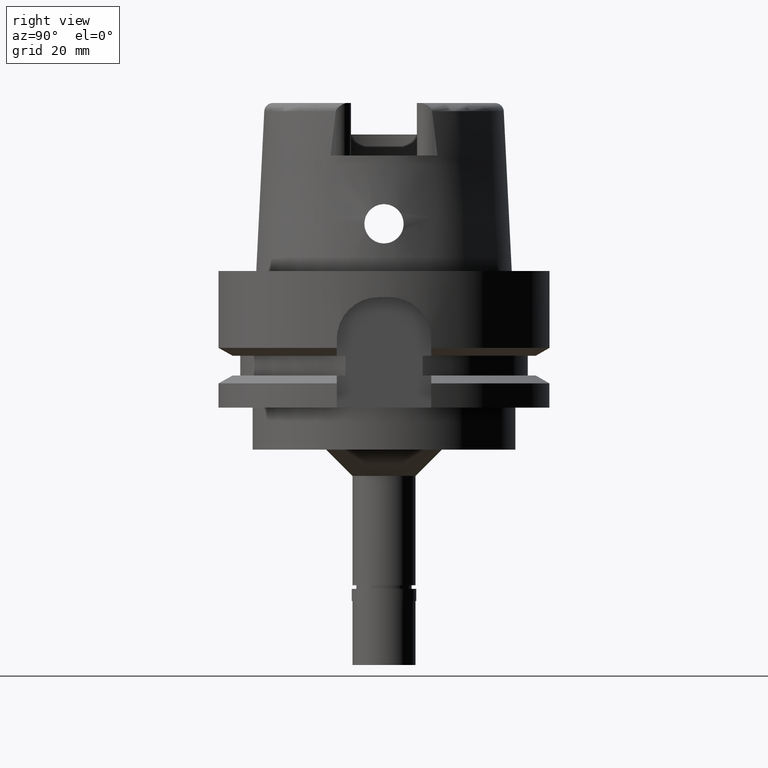
[diagram: clean part render]
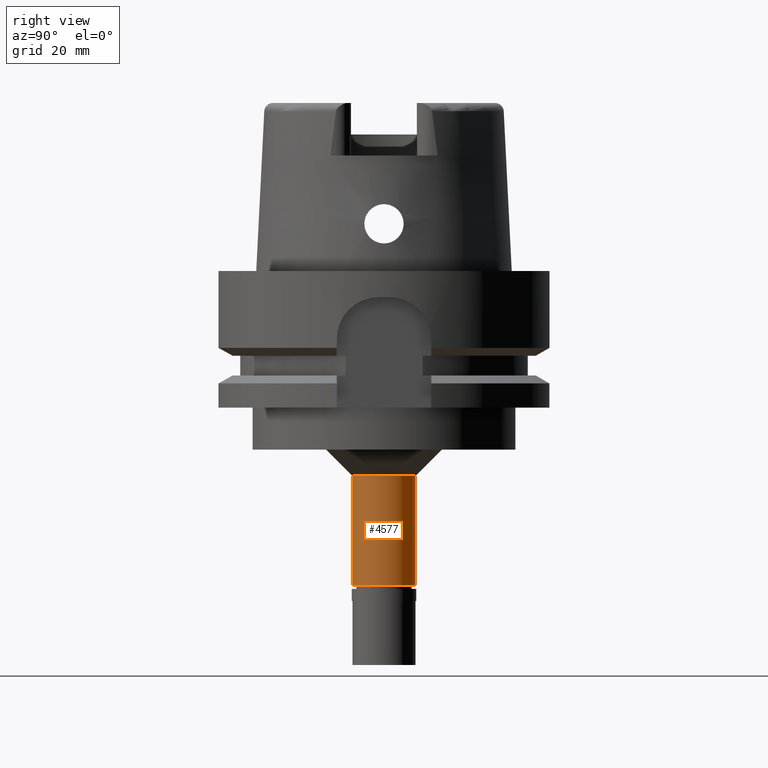
[diagram: same view with one face highlighted and labeled with its STEP entity id]
A machine part, right view. The second image highlights one B-rep face of the part: STEP entity #4577.
In plain terms, the highlighted cylindrical surface (edge-blend (fillet) strip) has radius 6 mm, axis along (0, 0, 1).
Its self-contained STEP definition (entity closure, byte-faithful):
#51 = ORIENTED_EDGE ( 'NONE', *, *, #4943, .T. ) ;
#250 = CARTESIAN_POINT ( 'NONE',  ( 0.0000000000000000000, 6.000000000000000000, -39.00000000000000000 ) ) ;
#390 = ORIENTED_EDGE ( 'NONE', *, *, #1626, .T. ) ;
#596 = VECTOR ( 'NONE', #740, 1000.000000000000000 ) ;
#687 = EDGE_CURVE ( 'NONE', #3244, #4751, #764, .T. ) ;
#716 = VERTEX_POINT ( 'NONE', #250 ) ;
#740 = DIRECTION ( 'NONE',  ( 0.0000000000000000000, 0.0000000000000000000, -1.000000000000000000 ) ) ;
#764 = LINE ( 'NONE', #1433, #4315 ) ;
#944 = CARTESIAN_POINT ( 'NONE',  ( 0.0000000000000000000, -6.000000000000000000, -39.00000000000000000 ) ) ;
#950 = CARTESIAN_POINT ( 'NONE',  ( 0.0000000000000000000, 0.0000000000000000000, -76.14999999999999147 ) ) ;
#1082 = DIRECTION ( 'NONE',  ( 0.0000000000000000000, 0.0000000000000000000, -1.000000000000000000 ) ) ;
#1107 = CARTESIAN_POINT ( 'NONE',  ( 0.0000000000000000000, 6.000000000000000000, -59.79999999999999716 ) ) ;
#1383 = FACE_OUTER_BOUND ( 'NONE', #1631, .T. ) ;
#1433 = CARTESIAN_POINT ( 'NONE',  ( 0.0000000000000000000, -6.000000000000000000, -39.00000000000000000 ) ) ;
#1535 = DIRECTION ( 'NONE',  ( 0.0000000000000000000, 1.000000000000000000, 0.0000000000000000000 ) ) ;
#1626 = EDGE_CURVE ( 'NONE', #716, #3244, #1688, .T. ) ;
#1631 = EDGE_LOOP ( 'NONE', ( #390, #2848, #51, #4519 ) ) ;
#1660 = DIRECTION ( 'NONE',  ( 0.0000000000000000000, -1.000000000000000000, 0.0000000000000000000 ) ) ;
#1688 = CIRCLE ( 'NONE', #4655, 6.000000000000000000 ) ;
#1746 = EDGE_CURVE ( 'NONE', #716, #3999, #4654, .T. ) ;
#1762 = AXIS2_PLACEMENT_3D ( 'NONE', #4234, #5513, #1660 ) ;
#1832 = DIRECTION ( 'NONE',  ( 0.0000000000000000000, 1.000000000000000000, 0.0000000000000000000 ) ) ;
#2848 = ORIENTED_EDGE ( 'NONE', *, *, #687, .T. ) ;
#3194 = CARTESIAN_POINT ( 'NONE',  ( 0.0000000000000000000, 0.0000000000000000000, -39.00000000000000000 ) ) ;
#3206 = CARTESIAN_POINT ( 'NONE',  ( 0.0000000000000000000, -6.000000000000000000, -59.79999999999999716 ) ) ;
#3244 = VERTEX_POINT ( 'NONE', #944 ) ;
#3482 = CIRCLE ( 'NONE', #1762, 6.000000000000000000 ) ;
#3999 = VERTEX_POINT ( 'NONE', #1107 ) ;
#4234 = CARTESIAN_POINT ( 'NONE',  ( 0.0000000000000000000, 0.0000000000000000000, -59.79999999999999716 ) ) ;
#4283 = AXIS2_PLACEMENT_3D ( 'NONE', #950, #4400, #1832 ) ;
#4315 = VECTOR ( 'NONE', #5375, 1000.000000000000000 ) ;
#4400 = DIRECTION ( 'NONE',  ( 0.0000000000000000000, 0.0000000000000000000, 1.000000000000000000 ) ) ;
#4519 = ORIENTED_EDGE ( 'NONE', *, *, #1746, .F. ) ;
#4577 = ADVANCED_FACE ( 'NONE', ( #1383 ), #4815, .T. ) ;
#4654 = LINE ( 'NONE', #5087, #596 ) ;
#4655 = AXIS2_PLACEMENT_3D ( 'NONE', #3194, #1082, #1535 ) ;
#4751 = VERTEX_POINT ( 'NONE', #3206 ) ;
#4815 = CYLINDRICAL_SURFACE ( 'NONE', #4283, 6.000000000000000000 ) ;
#4943 = EDGE_CURVE ( 'NONE', #4751, #3999, #3482, .T. ) ;
#5087 = CARTESIAN_POINT ( 'NONE',  ( 0.0000000000000000000, 6.000000000000000000, -39.00000000000000000 ) ) ;
#5375 = DIRECTION ( 'NONE',  ( 0.0000000000000000000, 0.0000000000000000000, -1.000000000000000000 ) ) ;
#5513 = DIRECTION ( 'NONE',  ( 0.0000000000000000000, 0.0000000000000000000, 1.000000000000000000 ) ) ;